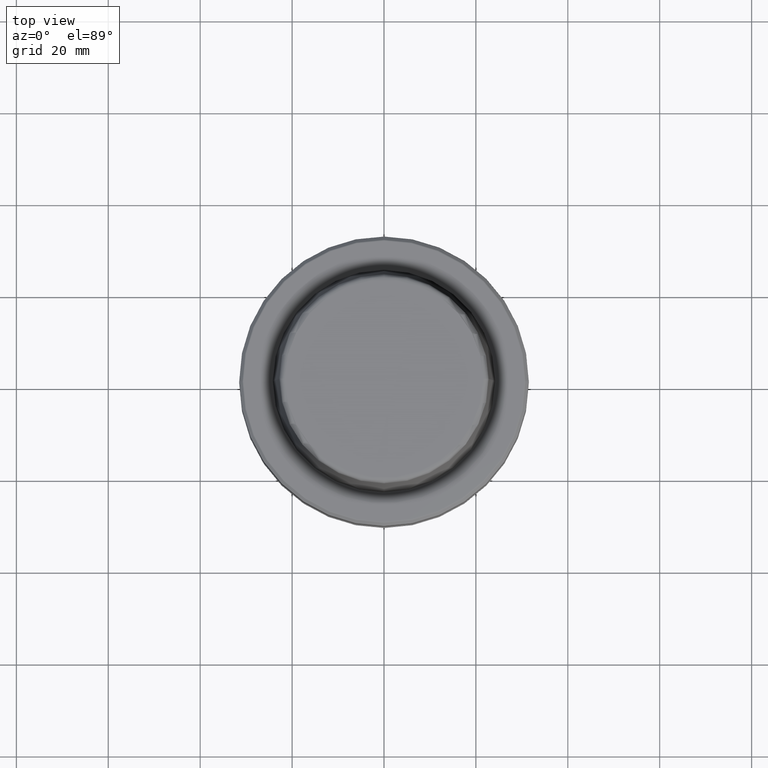
[diagram: clean part render]
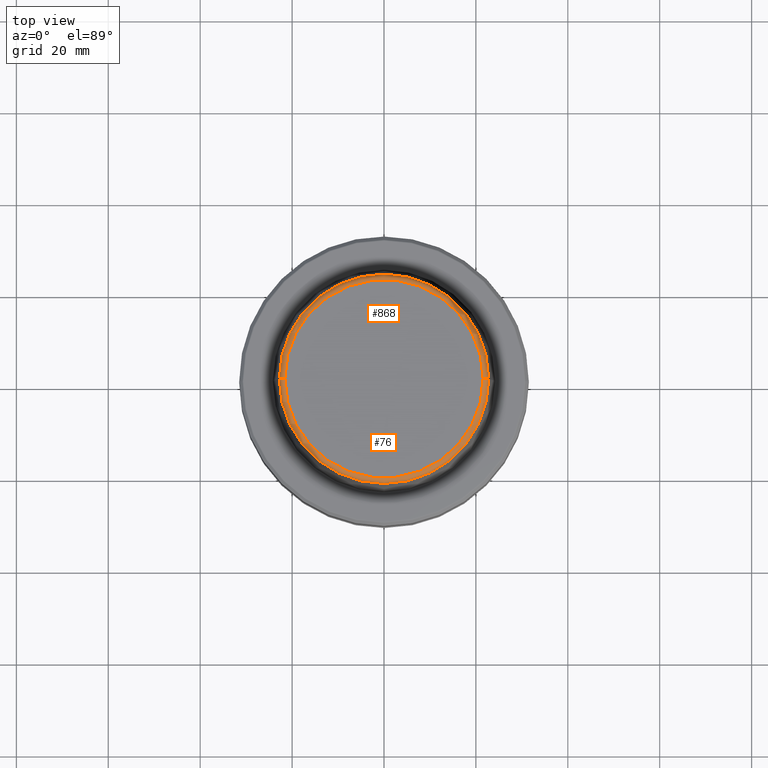
[diagram: same view with one multi-face feature highlighted, each face labeled with its STEP entity id]
A machine part, top view. The highlighted faces form ONE feature: a constant-radius fillet chain: 2 tangent blend faces with common blend radius 1.2 mm. The faces share edges in the B-rep.
Their STEP definitions:
[1] entity #76 (Torus):
#76 = ADVANCED_FACE ( 'NONE', ( #770 ), #534, .T. ) ;
#115 = DIRECTION ( 'NONE',  ( -0.0000000000000000000, -0.0000000000000000000, 1.000000000000000000 ) ) ;
#127 = DIRECTION ( 'NONE',  ( 0.0000000000000000000, -1.000000000000000000, 0.0000000000000000000 ) ) ;
#179 = CIRCLE ( 'NONE', #614, 1.200000000000003100 ) ;
#192 = AXIS2_PLACEMENT_3D ( 'NONE', #229, #920, #313 ) ;
#229 = CARTESIAN_POINT ( 'NONE',  ( 0.0000000000000000000, 0.0000000000000000000, 31.89999999999999900 ) ) ;
#258 = CIRCLE ( 'NONE', #992, 1.200000000000003100 ) ;
#266 = ORIENTED_EDGE ( 'NONE', *, *, #1106, .F. ) ;
#294 = ORIENTED_EDGE ( 'NONE', *, *, #628, .T. ) ;
#306 = DIRECTION ( 'NONE',  ( 1.224646799147353200E-016, 1.000000000000000000, 0.0000000000000000000 ) ) ;
#313 = DIRECTION ( 'NONE',  ( 1.000000000000000000, 0.0000000000000000000, 0.0000000000000000000 ) ) ;
#332 = VERTEX_POINT ( 'NONE', #879 ) ;
#434 = CIRCLE ( 'NONE', #192, 21.58108272732117100 ) ;
#454 = CARTESIAN_POINT ( 'NONE',  ( 0.0000000000000000000, 0.0000000000000000000, 30.69999999999999200 ) ) ;
#534 = TOROIDAL_SURFACE ( 'NONE', #749, 21.58108272732117100, 1.200000000000003100 ) ;
#614 = AXIS2_PLACEMENT_3D ( 'NONE', #914, #306, #1008 ) ;
#628 = EDGE_CURVE ( 'NONE', #872, #332, #258, .T. ) ;
#639 = EDGE_LOOP ( 'NONE', ( #266, #1167, #294, #907 ) ) ;
#710 = CARTESIAN_POINT ( 'NONE',  ( 0.0000000000000000000, 0.0000000000000000000, 30.76004333261571900 ) ) ;
#722 = CARTESIAN_POINT ( 'NONE',  ( 21.58108272732117100, 0.0000000000000000000, 30.69999999999999200 ) ) ;
#741 = VERTEX_POINT ( 'NONE', #941 ) ;
#749 = AXIS2_PLACEMENT_3D ( 'NONE', #454, #948, #757 ) ;
#757 = DIRECTION ( 'NONE',  ( 1.000000000000000000, 0.0000000000000000000, 0.0000000000000000000 ) ) ;
#770 = FACE_OUTER_BOUND ( 'NONE', #639, .T. ) ;
#802 = DIRECTION ( 'NONE',  ( 1.000000000000000000, 0.0000000000000000000, 0.0000000000000000000 ) ) ;
#816 = DIRECTION ( 'NONE',  ( 0.0000000000000000000, 0.0000000000000000000, -1.000000000000000000 ) ) ;
#832 = CARTESIAN_POINT ( 'NONE',  ( -22.77957961851797100, 0.0000000000000000000, 30.76004333261571900 ) ) ;
#842 = CIRCLE ( 'NONE', #1161, 22.77957961851797100 ) ;
#872 = VERTEX_POINT ( 'NONE', #929 ) ;
#879 = CARTESIAN_POINT ( 'NONE',  ( 21.58108272732117100, 0.0000000000000000000, 31.89999999999999900 ) ) ;
#892 = EDGE_CURVE ( 'NONE', #1074, #872, #842, .T. ) ;
#907 = ORIENTED_EDGE ( 'NONE', *, *, #1151, .F. ) ;
#914 = CARTESIAN_POINT ( 'NONE',  ( -21.58108272732117100, 2.642920388414810300E-015, 30.69999999999999200 ) ) ;
#920 = DIRECTION ( 'NONE',  ( -0.0000000000000000000, -0.0000000000000000000, 1.000000000000000000 ) ) ;
#929 = CARTESIAN_POINT ( 'NONE',  ( 22.77957961851797100, 2.874852597157249900E-015, 30.76004333261571900 ) ) ;
#941 = CARTESIAN_POINT ( 'NONE',  ( -21.58108272732117100, 2.716307157494421400E-015, 31.89999999999999900 ) ) ;
#948 = DIRECTION ( 'NONE',  ( -0.0000000000000000000, -0.0000000000000000000, 1.000000000000000000 ) ) ;
#992 = AXIS2_PLACEMENT_3D ( 'NONE', #722, #127, #816 ) ;
#1008 = DIRECTION ( 'NONE',  ( -1.000000000000000000, 1.224646799147353200E-016, 0.0000000000000000000 ) ) ;
#1074 = VERTEX_POINT ( 'NONE', #832 ) ;
#1106 = EDGE_CURVE ( 'NONE', #1074, #741, #179, .T. ) ;
#1151 = EDGE_CURVE ( 'NONE', #741, #332, #434, .T. ) ;
#1161 = AXIS2_PLACEMENT_3D ( 'NONE', #710, #115, #802 ) ;
#1167 = ORIENTED_EDGE ( 'NONE', *, *, #892, .T. ) ;
[2] entity #868 (Torus):
#59 = DIRECTION ( 'NONE',  ( 1.000000000000000000, 0.0000000000000000000, 0.0000000000000000000 ) ) ;
#60 = CARTESIAN_POINT ( 'NONE',  ( 0.0000000000000000000, 0.0000000000000000000, 31.89999999999999900 ) ) ;
#72 = EDGE_CURVE ( 'NONE', #872, #1074, #1254, .T. ) ;
#102 = DIRECTION ( 'NONE',  ( 1.000000000000000000, 0.0000000000000000000, 0.0000000000000000000 ) ) ;
#106 = ORIENTED_EDGE ( 'NONE', *, *, #955, .F. ) ;
#127 = DIRECTION ( 'NONE',  ( 0.0000000000000000000, -1.000000000000000000, 0.0000000000000000000 ) ) ;
#170 = DIRECTION ( 'NONE',  ( 1.000000000000000000, 0.0000000000000000000, 0.0000000000000000000 ) ) ;
#179 = CIRCLE ( 'NONE', #614, 1.200000000000003100 ) ;
#258 = CIRCLE ( 'NONE', #992, 1.200000000000003100 ) ;
#306 = DIRECTION ( 'NONE',  ( 1.224646799147353200E-016, 1.000000000000000000, 0.0000000000000000000 ) ) ;
#332 = VERTEX_POINT ( 'NONE', #879 ) ;
#342 = ORIENTED_EDGE ( 'NONE', *, *, #628, .F. ) ;
#479 = AXIS2_PLACEMENT_3D ( 'NONE', #1241, #660, #59 ) ;
#614 = AXIS2_PLACEMENT_3D ( 'NONE', #914, #306, #1008 ) ;
#626 = TOROIDAL_SURFACE ( 'NONE', #1037, 21.58108272732117100, 1.200000000000003100 ) ;
#628 = EDGE_CURVE ( 'NONE', #872, #332, #258, .T. ) ;
#660 = DIRECTION ( 'NONE',  ( -0.0000000000000000000, -0.0000000000000000000, 1.000000000000000000 ) ) ;
#722 = CARTESIAN_POINT ( 'NONE',  ( 21.58108272732117100, 0.0000000000000000000, 30.69999999999999200 ) ) ;
#737 = EDGE_LOOP ( 'NONE', ( #824, #921, #106, #342 ) ) ;
#741 = VERTEX_POINT ( 'NONE', #941 ) ;
#758 = DIRECTION ( 'NONE',  ( -0.0000000000000000000, -0.0000000000000000000, 1.000000000000000000 ) ) ;
#816 = DIRECTION ( 'NONE',  ( 0.0000000000000000000, 0.0000000000000000000, -1.000000000000000000 ) ) ;
#824 = ORIENTED_EDGE ( 'NONE', *, *, #72, .T. ) ;
#830 = AXIS2_PLACEMENT_3D ( 'NONE', #60, #758, #170 ) ;
#832 = CARTESIAN_POINT ( 'NONE',  ( -22.77957961851797100, 0.0000000000000000000, 30.76004333261571900 ) ) ;
#868 = ADVANCED_FACE ( 'NONE', ( #889 ), #626, .T. ) ;
#872 = VERTEX_POINT ( 'NONE', #929 ) ;
#879 = CARTESIAN_POINT ( 'NONE',  ( 21.58108272732117100, 0.0000000000000000000, 31.89999999999999900 ) ) ;
#889 = FACE_OUTER_BOUND ( 'NONE', #737, .T. ) ;
#914 = CARTESIAN_POINT ( 'NONE',  ( -21.58108272732117100, 2.642920388414810300E-015, 30.69999999999999200 ) ) ;
#921 = ORIENTED_EDGE ( 'NONE', *, *, #1106, .T. ) ;
#929 = CARTESIAN_POINT ( 'NONE',  ( 22.77957961851797100, 2.874852597157249900E-015, 30.76004333261571900 ) ) ;
#941 = CARTESIAN_POINT ( 'NONE',  ( -21.58108272732117100, 2.716307157494421400E-015, 31.89999999999999900 ) ) ;
#955 = EDGE_CURVE ( 'NONE', #332, #741, #1028, .T. ) ;
#992 = AXIS2_PLACEMENT_3D ( 'NONE', #722, #127, #816 ) ;
#1008 = DIRECTION ( 'NONE',  ( -1.000000000000000000, 1.224646799147353200E-016, 0.0000000000000000000 ) ) ;
#1028 = CIRCLE ( 'NONE', #830, 21.58108272732117100 ) ;
#1037 = AXIS2_PLACEMENT_3D ( 'NONE', #1274, #1190, #102 ) ;
#1074 = VERTEX_POINT ( 'NONE', #832 ) ;
#1106 = EDGE_CURVE ( 'NONE', #1074, #741, #179, .T. ) ;
#1190 = DIRECTION ( 'NONE',  ( -0.0000000000000000000, -0.0000000000000000000, 1.000000000000000000 ) ) ;
#1241 = CARTESIAN_POINT ( 'NONE',  ( 0.0000000000000000000, 0.0000000000000000000, 30.76004333261571900 ) ) ;
#1254 = CIRCLE ( 'NONE', #479, 22.77957961851797100 ) ;
#1274 = CARTESIAN_POINT ( 'NONE',  ( 0.0000000000000000000, 0.0000000000000000000, 30.69999999999999200 ) ) ;